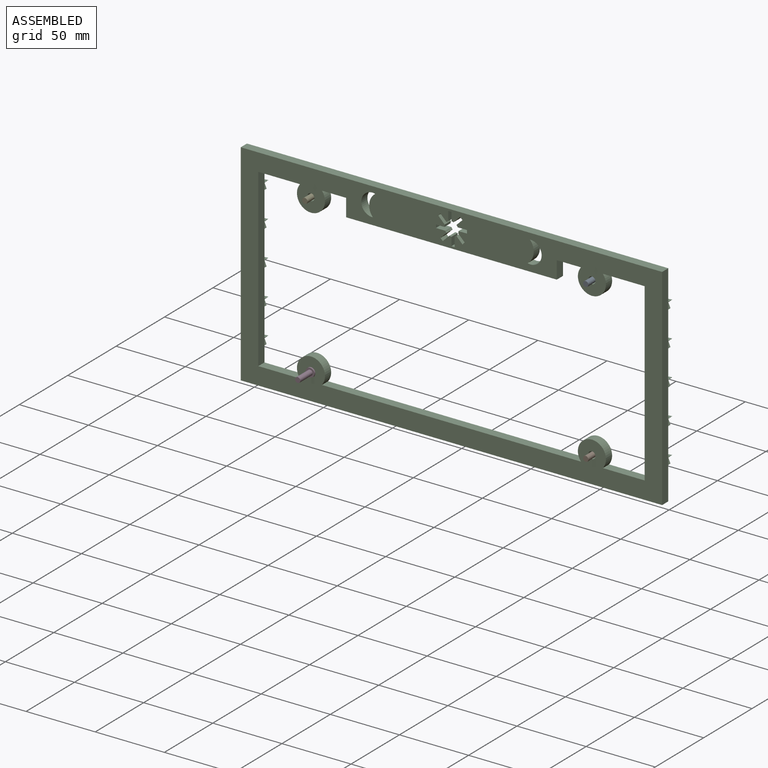
[diagram: assembled view]
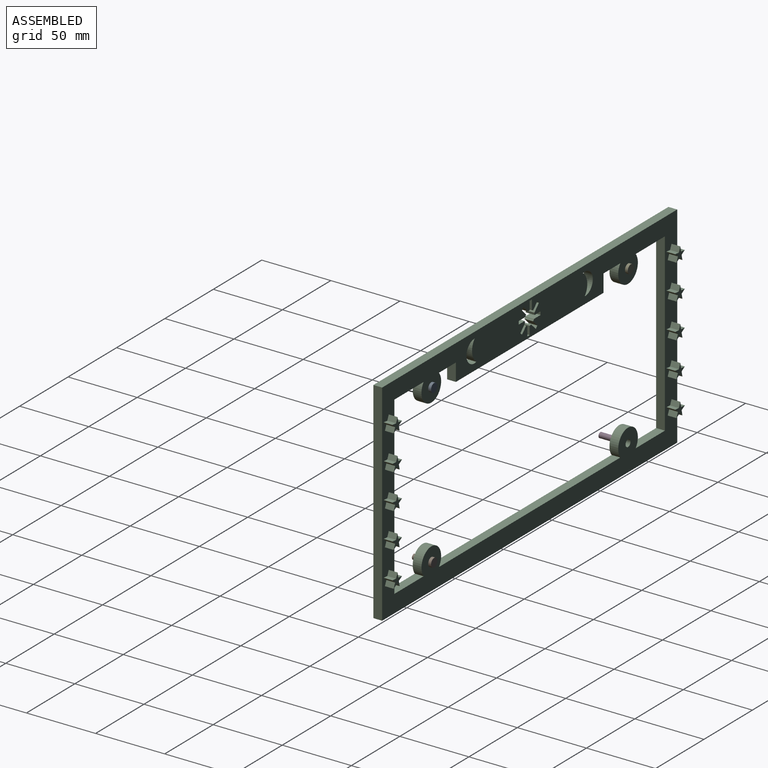
[diagram: assembled view, second angle]
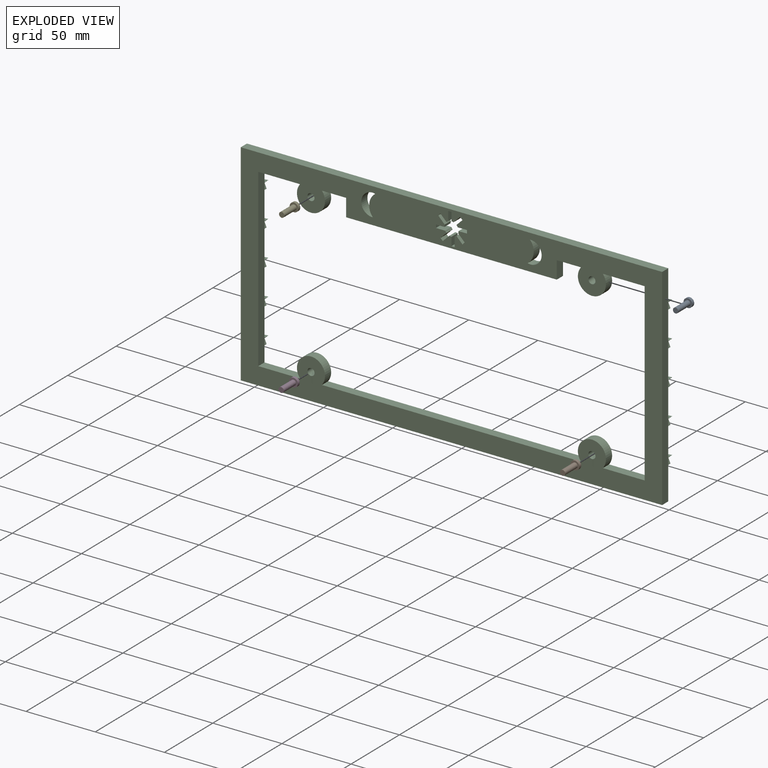
[diagram: exploded view]
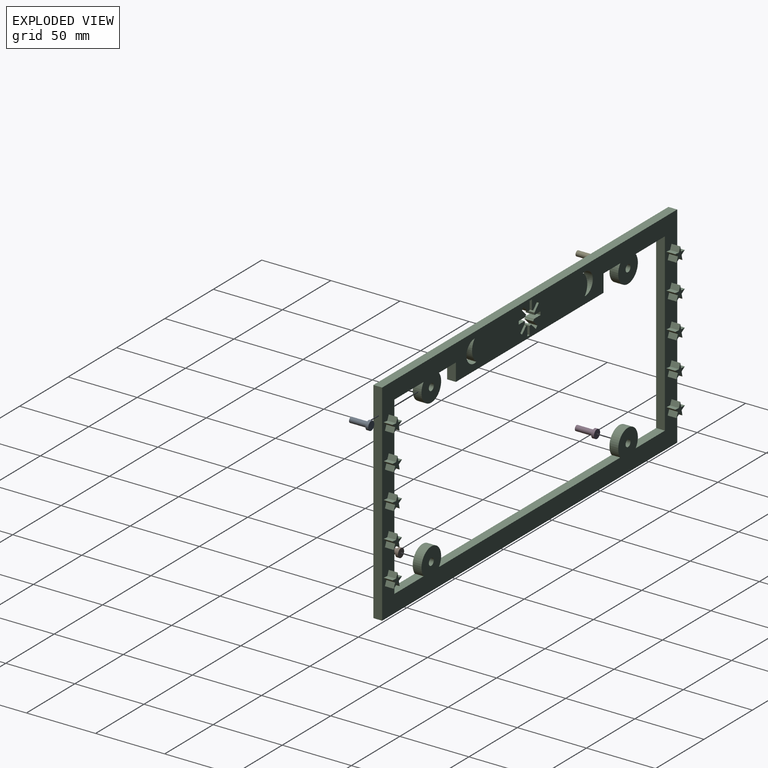
[diagram: exploded view, second angle]
ASSEMBLY  parts=5 mates=3
PART A: 5 faces, bbox 6.4x14.7x6.4 mm
  f0: cylinder r=3.17mm len=6.35mm, axis (0,1,0), area 40.5mm2, adj f1,f2
  f1: plane 6.35x6.35mm, normal (0,-1,0), area 20.3mm2, adj f0,f3
  f2: plane 6.35x6.35mm, normal (0,1,0), area 31.7mm2, adj f0
  f3: cylinder r=1.91mm len=12.7mm, axis (0,1,0), area 152mm2, adj f1,f4
  f4: plane 3.81x3.81mm, normal (0,-1,0), area 11.4mm2, adj f3
PART B: same geometry as A
PART C: 172 faces, bbox 304.8x12.7x152.4 mm
  f0: plane 304.8x152.4mm, normal (0,-1,0), area 13278.1mm2, adj f2,f3,f4,f5,f6,f7,f8,f9
  f1: plane 304.8x152.4mm, normal (0,1,0), area 13586.8mm2, adj f2,f3,f4,f5,f6,f7,f8,f9
  f2: plane 30.17x6.35mm, normal (0,0,-1), area 191.6mm2, adj f0,f1,f3,f23
  f3: plane 127x6.35mm, normal (-1,0,0), area 806.5mm2, adj f0,f1,f2,f4
  f4: plane 30.17x6.35mm, normal (0,0,1), area 191.6mm2, adj f0,f1,f3,f5
  f5: cylinder r=10.16mm len=20.32mm, axis (0,1,0), area 289.8mm2, adj f0,f1,f4,f6
  f6: plane 17.47x6.35mm, normal (0,0,1), area 110.9mm2, adj f0,f1,f5,f7
  f7: plane 12.7x6.35mm, normal (1,0,0), area 80.6mm2, adj f0,f1,f6,f8
  f8: plane 152.4x6.35mm, normal (0,0,1), area 967.7mm2, adj f0,f1,f7,f9
  f9: plane 12.7x6.35mm, normal (-1,0,0), area 80.6mm2, adj f0,f1,f8,f10
  f10: plane 17.47x6.35mm, normal (0,0,1), area 110.9mm2, adj f0,f1,f9,f11
  f11: cylinder r=10.16mm len=20.32mm, axis (0,1,0), area 289.8mm2, adj f0,f1,f10,f12
  f12: plane 30.17x6.35mm, normal (0,0,1), area 191.6mm2, adj f0,f1,f11,f13
  f13: plane 127x6.35mm, normal (1,0,0), area 806.5mm2, adj f0,f1,f12,f14
  f14: plane 30.17x6.35mm, normal (0,0,-1), area 191.6mm2, adj f0,f1,f13,f15
  f15: cylinder r=10.16mm len=20.32mm, axis (0,1,0), area 289.8mm2, adj f0,f1,f14,f16
  f16: plane 187.34x6.35mm, normal (0,0,-1), area 1189.6mm2, adj f0,f1,f15,f23
  f17: plane 152.4x6.35mm, normal (1,0,0), area 967.7mm2, adj f0,f1,f18,f24
  f18: plane 304.8x6.35mm, normal (0,0,1), area 1935.5mm2, adj f0,f1,f17,f19
  f19: plane 152.4x6.35mm, normal (-1,0,0), area 967.7mm2, adj f0,f1,f18,f24
  f20: cylinder r=2.54mm len=6.35mm, axis (0,1,0), area 101.3mm2, adj f0,f1
  f21: cylinder r=2.54mm len=6.35mm, axis (0,1,0), area 101.3mm2, adj f0,f1
  f22: cylinder r=2.54mm len=6.35mm, axis (0,1,0), area 101.3mm2, adj f0,f1
  f23: cylinder r=10.16mm len=20.32mm, axis (0,1,0), area 289.8mm2, adj f0,f1,f2,f16
  f24: plane 304.8x6.35mm, normal (0,0,-1), area 1935.5mm2, adj f0,f1,f17,f19
  f25: cylinder r=2.54mm len=6.35mm, axis (0,1,0), area 101.3mm2, adj f0,f1
  f26: plane 6.35x3.72mm, normal (-0.98,0,-0.22), area 24.2mm2, adj f0,f27,f35,f36
  f27: plane 6.35x3.28mm, normal (-0.51,0,0.86), area 24.2mm2, adj f0,f26,f28,f36
  f28: plane 6.35x3.79mm, normal (-0.1,0,-1), area 24.2mm2, adj f0,f27,f29,f36
  f29: plane 6.35x3.72mm, normal (-0.98,0,-0.22), area 24.2mm2, adj f0,f28,f30,f36
  f30: plane 6.35x3.49mm, normal (0.92,0,-0.4), area 24.2mm2, adj f0,f29,f31,f36
  f31: plane 6.35x3.79mm, normal (-0.1,0,-1), area 24.2mm2, adj f0,f30,f32,f36
  f32: plane 6.35x2.85mm, normal (0.66,0,0.75), area 24.2mm2, adj f0,f31,f33,f36
  f33: plane 6.35x3.49mm, normal (0.92,0,-0.4), area 24.2mm2, adj f0,f32,f34,f36
  f34: plane 6.35x3.28mm, normal (-0.51,0,0.86), area 24.2mm2, adj f0,f33,f35,f36
  f35: plane 6.35x2.85mm, normal (0.66,0,0.75), area 24.2mm2, adj f0,f26,f34,f36
  f36: plane 9.93x9.74mm, normal (0,-1,0), area 30.9mm2, adj f26,f27,f28,f29,f30,f31,f32,f33
  f37: plane 6.35x3.49mm, normal (0.92,0,-0.4), area 24.2mm2, adj f0,f38,f46,f47
  f38: plane 6.35x3.79mm, normal (-0.1,0,-1), area 24.2mm2, adj f0,f37,f39,f47
  f39: plane 6.35x2.85mm, normal (0.66,0,0.75), area 24.2mm2, adj f0,f38,f40,f47
  f40: plane 6.35x3.49mm, normal (0.92,0,-0.4), area 24.2mm2, adj f0,f39,f41,f47
  f41: plane 6.35x3.28mm, normal (-0.51,0,0.86), area 24.2mm2, adj f0,f40,f42,f47
  f42: plane 6.35x2.85mm, normal (0.66,0,0.75), area 24.2mm2, adj f0,f41,f43,f47
  f43: plane 6.35x3.72mm, normal (-0.98,0,-0.22), area 24.2mm2, adj f0,f42,f44,f47
  f44: plane 6.35x3.28mm, normal (-0.51,0,0.86), area 24.2mm2, adj f0,f43,f45,f47
  f45: plane 6.35x3.79mm, normal (-0.1,0,-1), area 24.2mm2, adj f0,f44,f46,f47
  f46: plane 6.35x3.72mm, normal (-0.98,0,-0.22), area 24.2mm2, adj f0,f37,f45,f47
  f47: plane 9.93x9.74mm, normal (0,-1,0), area 30.9mm2, adj f37,f38,f39,f40,f41,f42,f43,f44
  f48: plane 6.35x3.49mm, normal (0.92,0,-0.4), area 24.2mm2, adj f0,f49,f57,f58
  f49: plane 6.35x3.79mm, normal (-0.1,0,-1), area 24.2mm2, adj f0,f48,f50,f58
  f50: plane 6.35x2.85mm, normal (0.66,0,0.75), area 24.2mm2, adj f0,f49,f51,f58
  f51: plane 6.35x3.49mm, normal (0.92,0,-0.4), area 24.2mm2, adj f0,f50,f52,f58
  f52: plane 6.35x3.28mm, normal (-0.51,0,0.86), area 24.2mm2, adj f0,f51,f53,f58
  f53: plane 6.35x2.85mm, normal (0.66,0,0.75), area 24.2mm2, adj f0,f52,f54,f58
  f54: plane 6.35x3.72mm, normal (-0.98,0,-0.22), area 24.2mm2, adj f0,f53,f55,f58
  f55: plane 6.35x3.28mm, normal (-0.51,0,0.86), area 24.2mm2, adj f0,f54,f56,f58
  f56: plane 6.35x3.79mm, normal (-0.1,0,-1), area 24.2mm2, adj f0,f55,f57,f58
  f57: plane 6.35x3.72mm, normal (-0.98,0,-0.22), area 24.2mm2, adj f0,f48,f56,f58
  f58: plane 9.93x9.74mm, normal (0,-1,0), area 30.9mm2, adj f48,f49,f50,f51,f52,f53,f54,f55
  f59: plane 6.35x3.49mm, normal (0.92,0,-0.4), area 24.2mm2, adj f0,f60,f68,f69
  f60: plane 6.35x3.79mm, normal (-0.1,0,-1), area 24.2mm2, adj f0,f59,f61,f69
  f61: plane 6.35x2.85mm, normal (0.66,0,0.75), area 24.2mm2, adj f0,f60,f62,f69
  f62: plane 6.35x3.49mm, normal (0.92,0,-0.4), area 24.2mm2, adj f0,f61,f63,f69
  f63: plane 6.35x3.28mm, normal (-0.51,0,0.86), area 24.2mm2, adj f0,f62,f64,f69
  f64: plane 6.35x2.85mm, normal (0.66,0,0.75), area 24.2mm2, adj f0,f63,f65,f69
  f65: plane 6.35x3.72mm, normal (-0.98,0,-0.22), area 24.2mm2, adj f0,f64,f66,f69
  f66: plane 6.35x3.28mm, normal (-0.51,0,0.86), area 24.2mm2, adj f0,f65,f67,f69
  f67: plane 6.35x3.79mm, normal (-0.1,0,-1), area 24.2mm2, adj f0,f66,f68,f69
  f68: plane 6.35x3.72mm, normal (-0.98,0,-0.22), area 24.2mm2, adj f0,f59,f67,f69
  f69: plane 9.93x9.74mm, normal (0,-1,0), area 30.9mm2, adj f59,f60,f61,f62,f63,f64,f65,f66
  f70: plane 6.35x3.49mm, normal (0.92,0,-0.4), area 24.2mm2, adj f0,f71,f79,f80
  f71: plane 6.35x3.79mm, normal (-0.1,0,-1), area 24.2mm2, adj f0,f70,f72,f80
  f72: plane 6.35x2.85mm, normal (0.66,0,0.75), area 24.2mm2, adj f0,f71,f73,f80
  f73: plane 6.35x3.49mm, normal (0.92,0,-0.4), area 24.2mm2, adj f0,f72,f74,f80
  f74: plane 6.35x3.28mm, normal (-0.51,0,0.86), area 24.2mm2, adj f0,f73,f75,f80
  f75: plane 6.35x2.85mm, normal (0.66,0,0.75), area 24.2mm2, adj f0,f74,f76,f80
  f76: plane 6.35x3.72mm, normal (-0.98,0,-0.22), area 24.2mm2, adj f0,f75,f77,f80
  f77: plane 6.35x3.28mm, normal (-0.51,0,0.86), area 24.2mm2, adj f0,f76,f78,f80
  f78: plane 6.35x3.79mm, normal (-0.1,0,-1), area 24.2mm2, adj f0,f77,f79,f80
  f79: plane 6.35x3.72mm, normal (-0.98,0,-0.22), area 24.2mm2, adj f0,f70,f78,f80
  f80: plane 9.93x9.74mm, normal (0,-1,0), area 30.9mm2, adj f70,f71,f72,f73,f74,f75,f76,f77
  f81: plane 6.35x3.49mm, normal (0.92,0,-0.4), area 24.2mm2, adj f0,f82,f90,f91
  f82: plane 6.35x3.79mm, normal (-0.1,0,-1), area 24.2mm2, adj f0,f81,f83,f91
  f83: plane 6.35x2.85mm, normal (0.66,0,0.75), area 24.2mm2, adj f0,f82,f84,f91
  f84: plane 6.35x3.49mm, normal (0.92,0,-0.4), area 24.2mm2, adj f0,f83,f85,f91
  f85: plane 6.35x3.28mm, normal (-0.51,0,0.86), area 24.2mm2, adj f0,f84,f86,f91
  f86: plane 6.35x2.85mm, normal (0.66,0,0.75), area 24.2mm2, adj f0,f85,f87,f91
  f87: plane 6.35x3.72mm, normal (-0.98,0,-0.22), area 24.2mm2, adj f0,f86,f88,f91
  f88: plane 6.35x3.28mm, normal (-0.51,0,0.86), area 24.2mm2, adj f0,f87,f89,f91
  f89: plane 6.35x3.79mm, normal (-0.1,0,-1), area 24.2mm2, adj f0,f88,f90,f91
  f90: plane 6.35x3.72mm, normal (-0.98,0,-0.22), area 24.2mm2, adj f0,f81,f89,f91
  f91: plane 9.93x9.74mm, normal (0,-1,0), area 30.9mm2, adj f81,f82,f83,f84,f85,f86,f87,f88
  f92: plane 6.35x3.49mm, normal (0.92,0,-0.4), area 24.2mm2, adj f0,f93,f101,f102
  f93: plane 6.35x3.79mm, normal (-0.1,0,-1), area 24.2mm2, adj f0,f92,f94,f102
  f94: plane 6.35x2.85mm, normal (0.66,0,0.75), area 24.2mm2, adj f0,f93,f95,f102
  f95: plane 6.35x3.49mm, normal (0.92,0,-0.4), area 24.2mm2, adj f0,f94,f96,f102
  f96: plane 6.35x3.28mm, normal (-0.51,0,0.86), area 24.2mm2, adj f0,f95,f97,f102
  f97: plane 6.35x2.85mm, normal (0.66,0,0.75), area 24.2mm2, adj f0,f96,f98,f102
  f98: plane 6.35x3.72mm, normal (-0.98,0,-0.22), area 24.2mm2, adj f0,f97,f99,f102
  f99: plane 6.35x3.28mm, normal (-0.51,0,0.86), area 24.2mm2, adj f0,f98,f100,f102
  f100: plane 6.35x3.79mm, normal (-0.1,0,-1), area 24.2mm2, adj f0,f99,f101,f102
  f101: plane 6.35x3.72mm, normal (-0.98,0,-0.22), area 24.2mm2, adj f0,f92,f100,f102
  f102: plane 9.93x9.74mm, normal (0,-1,0), area 30.9mm2, adj f92,f93,f94,f95,f96,f97,f98,f99
  f103: plane 6.35x3.49mm, normal (0.92,0,-0.4), area 24.2mm2, adj f0,f104,f112,f113
  f104: plane 6.35x3.79mm, normal (-0.1,0,-1), area 24.2mm2, adj f0,f103,f105,f113
  f105: plane 6.35x2.85mm, normal (0.66,0,0.75), area 24.2mm2, adj f0,f104,f106,f113
  f106: plane 6.35x3.49mm, normal (0.92,0,-0.4), area 24.2mm2, adj f0,f105,f107,f113
  f107: plane 6.35x3.28mm, normal (-0.51,0,0.86), area 24.2mm2, adj f0,f106,f108,f113
  f108: plane 6.35x2.85mm, normal (0.66,0,0.75), area 24.2mm2, adj f0,f107,f109,f113
  f109: plane 6.35x3.72mm, normal (-0.98,0,-0.22), area 24.2mm2, adj f0,f108,f110,f113
  f110: plane 6.35x3.28mm, normal (-0.51,0,0.86), area 24.2mm2, adj f0,f109,f111,f113
  f111: plane 6.35x3.79mm, normal (-0.1,0,-1), area 24.2mm2, adj f0,f110,f112,f113
  f112: plane 6.35x3.72mm, normal (-0.98,0,-0.22), area 24.2mm2, adj f0,f103,f111,f113
  f113: plane 9.93x9.74mm, normal (0,-1,0), area 30.9mm2, adj f103,f104,f105,f106,f107,f108,f109,f110
  f114: plane 6.35x3.49mm, normal (0.92,0,-0.4), area 24.2mm2, adj f0,f115,f123,f124
  f115: plane 6.35x3.79mm, normal (-0.1,0,-1), area 24.2mm2, adj f0,f114,f116,f124
  f116: plane 6.35x2.85mm, normal (0.66,0,0.75), area 24.2mm2, adj f0,f115,f117,f124
  f117: plane 6.35x3.49mm, normal (0.92,0,-0.4), area 24.2mm2, adj f0,f116,f118,f124
  f118: plane 6.35x3.28mm, normal (-0.51,0,0.86), area 24.2mm2, adj f0,f117,f119,f124
  f119: plane 6.35x2.85mm, normal (0.66,0,0.75), area 24.2mm2, adj f0,f118,f120,f124
  f120: plane 6.35x3.72mm, normal (-0.98,0,-0.22), area 24.2mm2, adj f0,f119,f121,f124
  f121: plane 6.35x3.28mm, normal (-0.51,0,0.86), area 24.2mm2, adj f0,f120,f122,f124
  f122: plane 6.35x3.79mm, normal (-0.1,0,-1), area 24.2mm2, adj f0,f121,f123,f124
  f123: plane 6.35x3.72mm, normal (-0.98,0,-0.22), area 24.2mm2, adj f0,f114,f122,f124
  f124: plane 9.93x9.74mm, normal (0,-1,0), area 30.9mm2, adj f114,f115,f116,f117,f118,f119,f120,f121
  f125: plane 6.35x3.49mm, normal (0.92,0,-0.4), area 24.2mm2, adj f0,f126,f134,f135
  f126: plane 6.35x3.79mm, normal (-0.1,0,-1), area 24.2mm2, adj f0,f125,f127,f135
  f127: plane 6.35x2.85mm, normal (0.66,0,0.75), area 24.2mm2, adj f0,f126,f128,f135
  f128: plane 6.35x3.49mm, normal (0.92,0,-0.4), area 24.2mm2, adj f0,f127,f129,f135
  f129: plane 6.35x3.28mm, normal (-0.51,0,0.86), area 24.2mm2, adj f0,f128,f130,f135
  f130: plane 6.35x2.85mm, normal (0.66,0,0.75), area 24.2mm2, adj f0,f129,f131,f135
  f131: plane 6.35x3.72mm, normal (-0.98,0,-0.22), area 24.2mm2, adj f0,f130,f132,f135
  f132: plane 6.35x3.28mm, normal (-0.51,0,0.86), area 24.2mm2, adj f0,f131,f133,f135
  f133: plane 6.35x3.79mm, normal (-0.1,0,-1), area 24.2mm2, adj f0,f132,f134,f135
  f134: plane 6.35x3.72mm, normal (-0.98,0,-0.22), area 24.2mm2, adj f0,f125,f133,f135
  f135: plane 9.93x9.74mm, normal (0,-1,0), area 30.9mm2, adj f125,f126,f127,f128,f129,f130,f131,f132
  f136: cylinder r=10.83mm len=15.88mm, axis (0,-1,0), area 114.1mm2, adj f0,f1,f137
  f137: cylinder r=8.07mm len=16.15mm, axis (0,-1,0), area 176.3mm2, adj f0,f1,f136
  f138: cylinder r=10.83mm len=15.88mm, axis (0,-1,0), area 114.1mm2, adj f0,f1,f139
  f139: cylinder r=8.07mm len=16.15mm, axis (0,-1,0), area 176.3mm2, adj f0,f1,f138
  f140: plane 6.35x4.34mm, normal (-0.71,0,-0.71), area 39mm2, adj f0,f1,f141,f171
  f141: cylinder r=5.08mm len=6.35mm, axis (0,-1,0), area 10mm2, adj f0,f1,f140,f142
  f142: plane 6.7x6.35mm, normal (0,0,1), area 42.5mm2, adj f0,f1,f141,f143
  f143: plane 6.35x2.33mm, normal (-1,0,0), area 14.8mm2, adj f0,f1,f142,f144
  f144: plane 6.35x6.13mm, normal (0,0,-1), area 39mm2, adj f0,f1,f143,f145
  f145: cylinder r=5.08mm len=6.35mm, axis (0,-1,0), area 10mm2, adj f0,f1,f144,f146
  f146: plane 6.35x4.74mm, normal (-0.71,0,0.71), area 42.5mm2, adj f0,f1,f145,f147
  f147: plane 6.35x1.64mm, normal (-0.71,0,-0.71), area 14.8mm2, adj f0,f1,f146,f148
  f148: plane 6.35x4.34mm, normal (0.71,0,-0.71), area 39mm2, adj f0,f1,f147,f149
  f149: cylinder r=5.08mm len=6.35mm, axis (0,-1,0), area 10mm2, adj f0,f1,f148,f150
  f150: plane 6.7x6.35mm, normal (-1,0,0), area 42.5mm2, adj f0,f1,f149,f151
  f151: plane 6.35x2.33mm, normal (0,0,-1), area 14.8mm2, adj f0,f1,f150,f152
  f152: plane 6.35x6.13mm, normal (1,0,0), area 39mm2, adj f0,f1,f151,f153
  f153: cylinder r=5.08mm len=6.35mm, axis (0,-1,0), area 10mm2, adj f0,f1,f152,f154
  f154: plane 6.35x4.74mm, normal (-0.71,0,-0.71), area 42.5mm2, adj f0,f1,f153,f155
  f155: plane 6.35x1.64mm, normal (0.71,0,-0.71), area 14.8mm2, adj f0,f1,f154,f156
  f156: plane 6.35x4.34mm, normal (0.71,0,0.71), area 39mm2, adj f0,f1,f155,f157
  f157: cylinder r=5.08mm len=6.35mm, axis (0,-1,0), area 10mm2, adj f0,f1,f156,f158
  f158: plane 6.7x6.35mm, normal (0,0,-1), area 42.5mm2, adj f0,f1,f157,f159
  f159: plane 6.35x2.33mm, normal (1,0,0), area 14.8mm2, adj f0,f1,f158,f160
  f160: plane 6.35x6.13mm, normal (0,0,1), area 39mm2, adj f0,f1,f159,f161
  f161: cylinder r=5.08mm len=6.35mm, axis (0,-1,0), area 10mm2, adj f0,f1,f160,f162
  f162: plane 6.35x4.74mm, normal (0.71,0,-0.71), area 42.5mm2, adj f0,f1,f161,f163
  f163: plane 6.35x1.64mm, normal (0.71,0,0.71), area 14.8mm2, adj f0,f1,f162,f164
  f164: plane 6.35x4.34mm, normal (-0.71,0,0.71), area 39mm2, adj f0,f1,f163,f165
  f165: cylinder r=5.08mm len=6.35mm, axis (0,-1,0), area 10mm2, adj f0,f1,f164,f166
  f166: plane 6.7x6.35mm, normal (1,0,0), area 42.5mm2, adj f0,f1,f165,f167
  f167: plane 6.35x2.33mm, normal (0,0,1), area 14.8mm2, adj f0,f1,f166,f168
  f168: plane 6.35x6.13mm, normal (-1,0,0), area 39mm2, adj f0,f1,f167,f169
  f169: cylinder r=5.08mm len=6.35mm, axis (0,-1,0), area 10mm2, adj f0,f1,f168,f170
  f170: plane 6.35x4.74mm, normal (0.71,0,0.71), area 42.5mm2, adj f0,f1,f169,f171
  f171: plane 6.35x1.64mm, normal (-0.71,0,0.71), area 14.8mm2, adj f0,f1,f140,f170
PART D: same geometry as A
PART E: same geometry as A
PLACE A t=(37.69,46.22,163.43)mm
PLACE B t=(37.69,46.22,49.13)mm
PLACE C rot(axis=(1,0,0),180deg) t=(-63.91,37.84,106.28)mm
PLACE D t=(-165.51,38.86,49.13)mm
PLACE E t=(-165.51,46.22,163.43)mm
MATE fastened C.f21 <-> B.f0  axis (0,1,0) through (37.69,44.19,49.13)mm
MATE fastened C.f15 <-> D.f0  axis (0,1,0) through (-165.51,37.84,49.13)mm
MATE fastened E.f0 <-> C.f11  axis (0,1,0) through (-165.51,44.19,163.43)mm
